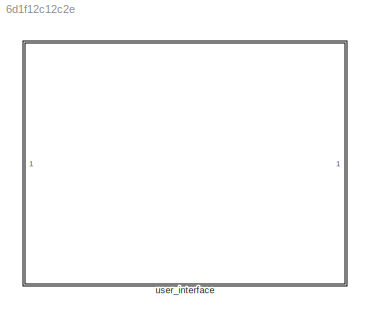
MODEL slx_6d1f12c12c2e
KIND library
CONFIG AbsTol = auto
CONFIG EnableMultiTasking = off
CONFIG FixedStep = auto
CONFIG MaxStep = auto
CONFIG MinStep = auto
CONFIG RelTol = 1e-3
CONFIG SampleTimeConstraint = Unconstrained
CONFIG SolverName = VariableStepAuto
CONFIG StartTime = 0.0
CONFIG StopTime = 10.0
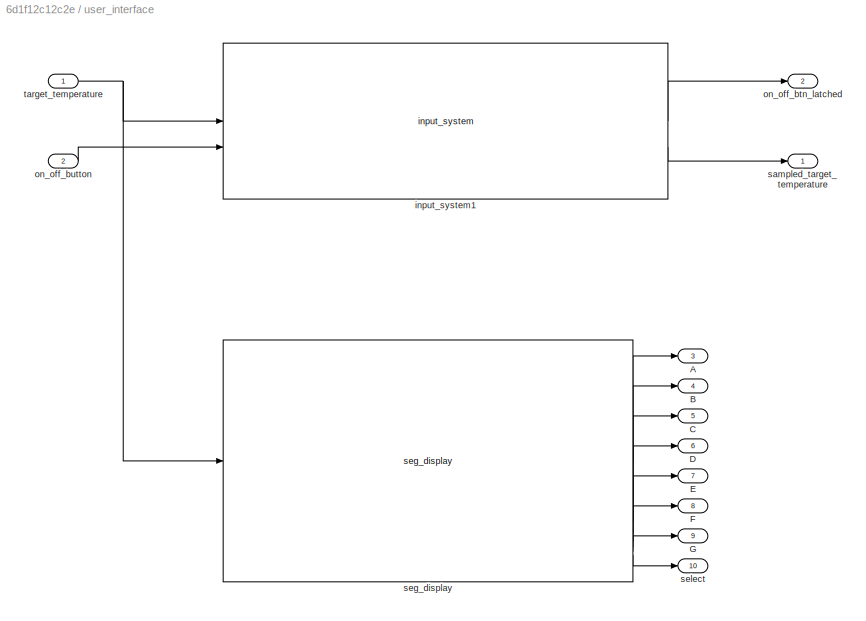
BLOCK [SubSystem] user_interface
BLOCK [Outport] user_interface/A
  Port = 3
BLOCK [Outport] user_interface/B
  Port = 4
BLOCK [Outport] user_interface/C
  Port = 5
BLOCK [Outport] user_interface/D
  Port = 6
BLOCK [Outport] user_interface/E
  Port = 7
BLOCK [Outport] user_interface/F
  Port = 8
BLOCK [Outport] user_interface/G
  Port = 9
BLOCK [Reference] user_interface/input_system1  REF=input_system/input_system  (lib defined in slx_81d8485ca02a)
  SourceBlock = input_system/input_system
  SourceType = SubSystem
BLOCK [Outport] user_interface/on_off_btn_latched
  Port = 2
BLOCK [Inport] user_interface/on_off_button
  Port = 2
BLOCK [Outport] user_interface/sampled_target_temperature
BLOCK [Reference] user_interface/seg_display  REF=seg_display/seg_display  (lib defined in slx_a605bcf523fb)
  SourceBlock = seg_display/seg_display
  SourceType = SubSystem
BLOCK [Outport] user_interface/select
  Port = 10
BLOCK [Inport] user_interface/target_temperature
  OutDataTypeStr = uint16
LINE user_interface/input_system1:1 -> user_interface/on_off_btn_latched:1
LINE user_interface/input_system1:2 -> user_interface/sampled_target_temperature:1
LINE user_interface/on_off_button:1 -> user_interface/input_system1:2
LINE user_interface/seg_display:1 -> user_interface/A:1
LINE user_interface/seg_display:2 -> user_interface/B:1
LINE user_interface/seg_display:3 -> user_interface/C:1
LINE user_interface/seg_display:4 -> user_interface/D:1
LINE user_interface/seg_display:5 -> user_interface/E:1
LINE user_interface/seg_display:6 -> user_interface/F:1
LINE user_interface/seg_display:7 -> user_interface/G:1
LINE user_interface/seg_display:8 -> user_interface/select:1
NET user_interface/target_temperature:1 -> user_interface/input_system1:1, user_interface/seg_display:1
note: NET lines group one-source signal fan-out (src -> all destinations, sorted); 1:1 wires keep LINE
